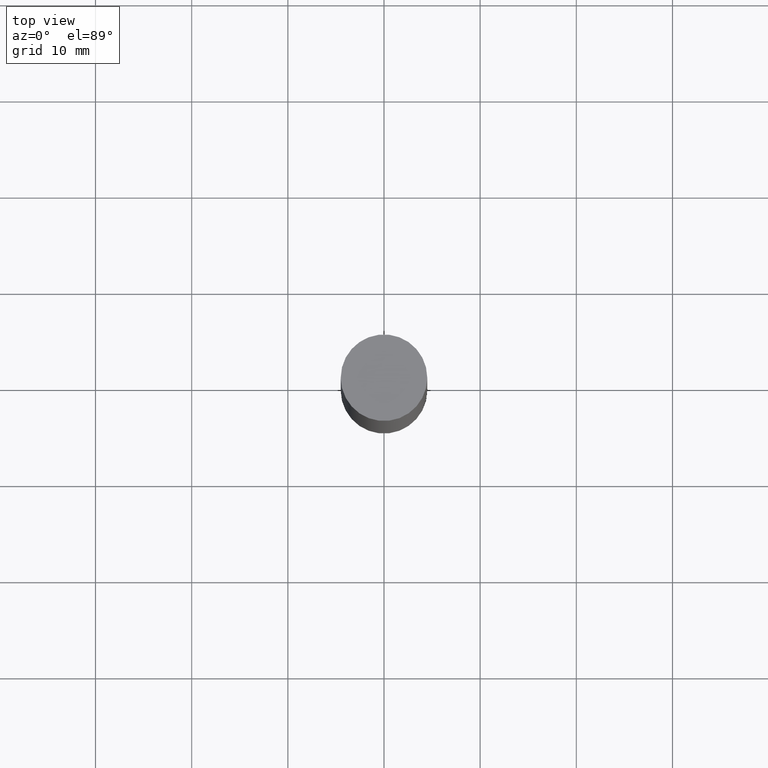
[diagram: clean part render]
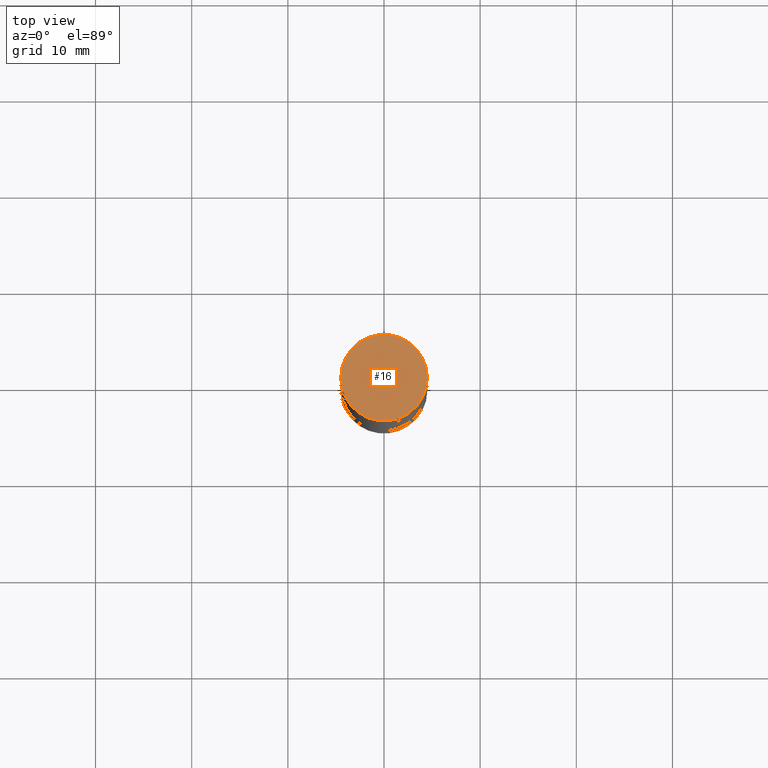
[diagram: same view with one face highlighted and labeled with its STEP entity id]
A machine part, top view. The second image highlights one B-rep face of the part: STEP entity #16.
In plain terms, the highlighted planar face has unit normal (0, 0, 1).
Its self-contained STEP definition (entity closure, byte-faithful):
#16 = ADVANCED_FACE ( 'NONE', ( #65 ), #327, .T. ) ;
#25 = VERTEX_POINT ( 'NONE', #266 ) ;
#65 = FACE_OUTER_BOUND ( 'NONE', #193, .T. ) ;
#67 = AXIS2_PLACEMENT_3D ( 'NONE', #594, #423, #171 ) ;
#75 = CIRCLE ( 'NONE', #460, 0.1771500000000000019 ) ;
#88 = CARTESIAN_POINT ( 'NONE',  ( -0.1771500000000000019, 2.547769778285537851E-16, 5.463695987328559963E-16 ) ) ;
#115 = DIRECTION ( 'NONE',  ( 2.445468806185136597E-29, 3.492890411551752677E-15, 1.000000000000000000 ) ) ;
#135 = VERTEX_POINT ( 'NONE', #88 ) ;
#171 = DIRECTION ( 'NONE',  ( -1.000000000000000000, 6.982962677686265922E-15, -9.839502134516470631E-33 ) ) ;
#193 = EDGE_LOOP ( 'NONE', ( #230, #235 ) ) ;
#205 = AXIS2_PLACEMENT_3D ( 'NONE', #524, #265, #470 ) ;
#219 = EDGE_CURVE ( 'NONE', #25, #135, #75, .T. ) ;
#230 = ORIENTED_EDGE ( 'NONE', *, *, #219, .T. ) ;
#235 = ORIENTED_EDGE ( 'NONE', *, *, #424, .T. ) ;
#265 = DIRECTION ( 'NONE',  ( 2.445468806185136597E-29, 3.492890411551752677E-15, 1.000000000000000000 ) ) ;
#266 = CARTESIAN_POINT ( 'NONE',  ( 0.1771500000000000019, -1.234951483405132701E-15, 5.463695987328526437E-16 ) ) ;
#301 = DIRECTION ( 'NONE',  ( 1.000000000000000000, -6.982962677686266711E-15, 0.000000000000000000 ) ) ;
#327 = PLANE ( 'NONE',  #67 ) ;
#423 = DIRECTION ( 'NONE',  ( 2.438088387897959769E-29, 3.492890411551753071E-15, 1.000000000000000000 ) ) ;
#424 = EDGE_CURVE ( 'NONE', #135, #25, #661, .T. ) ;
#460 = AXIS2_PLACEMENT_3D ( 'NONE', #516, #115, #301 ) ;
#470 = DIRECTION ( 'NONE',  ( 1.000000000000000000, -6.982962677686266711E-15, 0.000000000000000000 ) ) ;
#516 = CARTESIAN_POINT ( 'NONE',  ( 7.220980290903470182E-29, 2.080354946989631982E-18, 5.463695987328526437E-16 ) ) ;
#524 = CARTESIAN_POINT ( 'NONE',  ( 7.220980290903470182E-29, 2.080354946989631982E-18, 5.463695987328526437E-16 ) ) ;
#594 = CARTESIAN_POINT ( 'NONE',  ( 1.237031838352194377E-15, 0.1771500000000000019, 0.000000000000000000 ) ) ;
#661 = CIRCLE ( 'NONE', #205, 0.1771500000000000019 ) ;